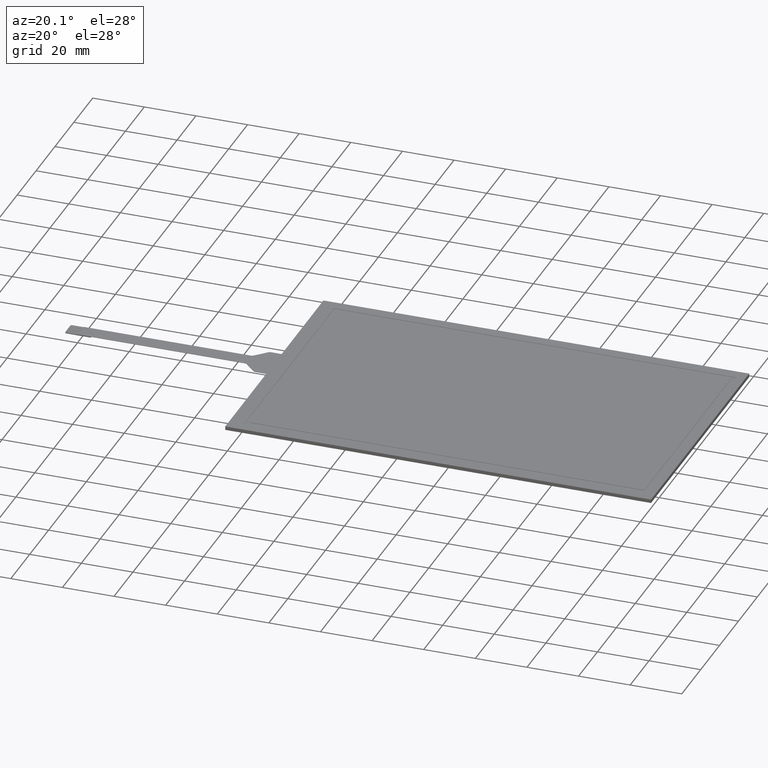
[diagram: clean part render]
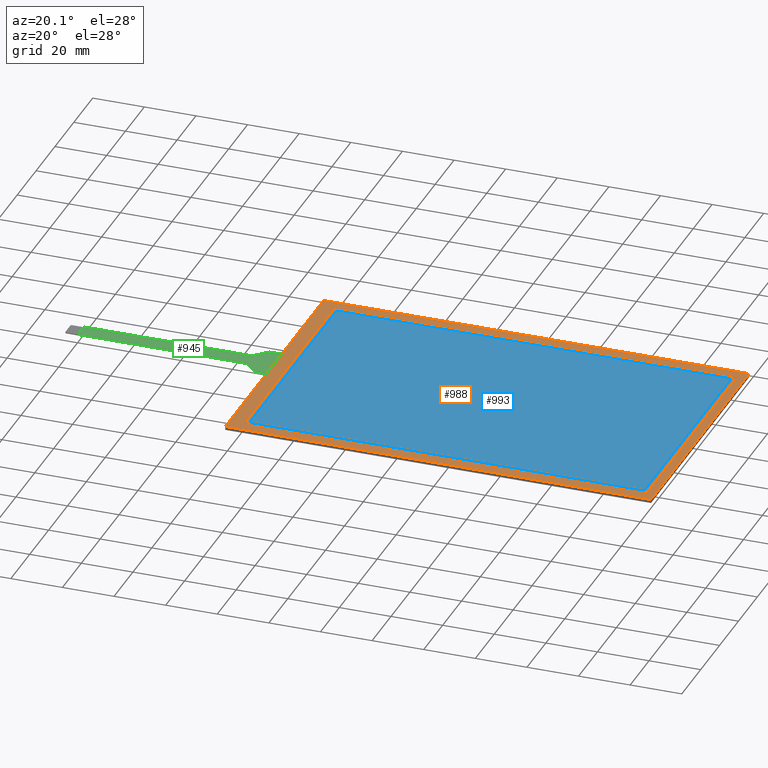
[diagram: same view with three faces highlighted in distinct colors, each labeled with its STEP entity id]
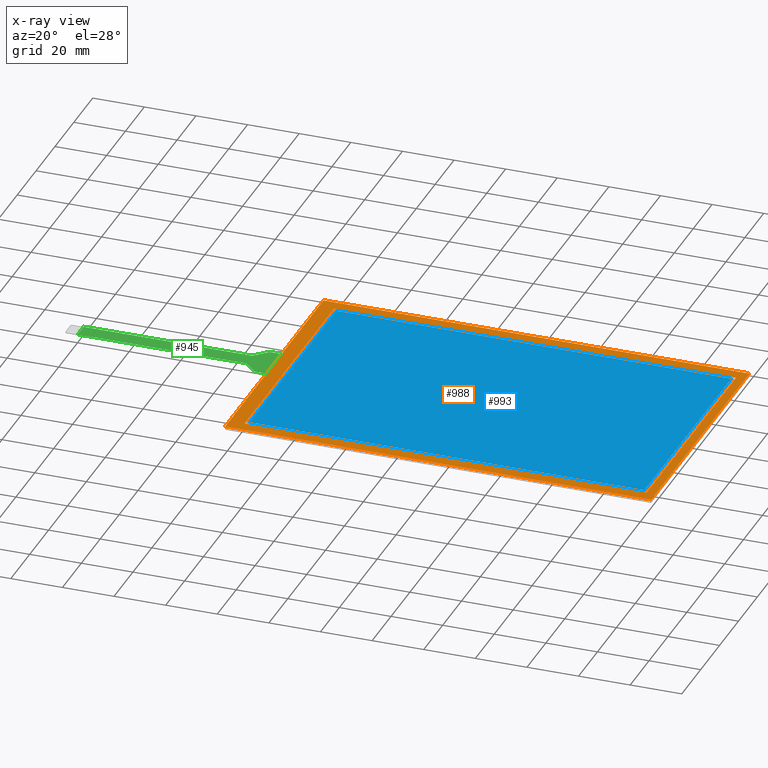
[diagram: x-ray of the same camera — body ghosted, the three highlighted faces saturated]
A machine part, auxiliary view with three faces highlighted in distinct colors.
The next image is the same camera in x-ray (body ghosted, the three faces saturated) — at least one of them is partly hidden behind the body in this view.
Their STEP definitions:

[orange] entity #988 — the highlighted planar face has unit normal (0, 0, 1).
#16=FACE_BOUND('',#160,.T.);
#56=PLANE('',#1071);
#107=FACE_OUTER_BOUND('',#159,.T.);
#159=EDGE_LOOP('',(#902,#903,#904,#905));
#160=EDGE_LOOP('',(#906,#907,#908,#909));
#270=LINE('',#1565,#396);
#274=LINE('',#1573,#400);
#277=LINE('',#1579,#403);
#280=LINE('',#1584,#406);
#282=LINE('',#1590,#408);
#283=LINE('',#1592,#409);
#284=LINE('',#1594,#410);
#285=LINE('',#1595,#411);
#396=VECTOR('',#1286,10.);
#400=VECTOR('',#1292,10.);
#403=VECTOR('',#1297,10.);
#406=VECTOR('',#1302,10.);
#408=VECTOR('',#1308,10.);
#409=VECTOR('',#1309,10.);
#410=VECTOR('',#1310,10.);
#411=VECTOR('',#1311,10.);
#508=VERTEX_POINT('',#1563);
#509=VERTEX_POINT('',#1564);
#512=VERTEX_POINT('',#1572);
#514=VERTEX_POINT('',#1578);
#516=VERTEX_POINT('',#1588);
#517=VERTEX_POINT('',#1589);
#518=VERTEX_POINT('',#1591);
#519=VERTEX_POINT('',#1593);
#638=EDGE_CURVE('',#508,#509,#270,.T.);
#642=EDGE_CURVE('',#512,#508,#274,.T.);
#645=EDGE_CURVE('',#514,#512,#277,.T.);
#648=EDGE_CURVE('',#509,#514,#280,.T.);
#650=EDGE_CURVE('',#516,#517,#282,.T.);
#651=EDGE_CURVE('',#517,#518,#283,.T.);
#652=EDGE_CURVE('',#518,#519,#284,.T.);
#653=EDGE_CURVE('',#519,#516,#285,.T.);
#902=ORIENTED_EDGE('',*,*,#650,.T.);
#903=ORIENTED_EDGE('',*,*,#651,.T.);
#904=ORIENTED_EDGE('',*,*,#652,.T.);
#905=ORIENTED_EDGE('',*,*,#653,.T.);
#906=ORIENTED_EDGE('',*,*,#638,.T.);
#907=ORIENTED_EDGE('',*,*,#648,.T.);
#908=ORIENTED_EDGE('',*,*,#645,.T.);
#909=ORIENTED_EDGE('',*,*,#642,.T.);
#988=ADVANCED_FACE('',(#107,#16),#56,.T.);
#1071=AXIS2_PLACEMENT_3D('',#1587,#1306,#1307);
#1286=DIRECTION('',(-1.87103100842664E-16,1.,0.));
#1292=DIRECTION('',(-1.,-1.13942067953833E-16,0.));
#1297=DIRECTION('',(9.35515504213319E-17,-1.,0.));
#1302=DIRECTION('',(1.,0.,0.));
#1306=DIRECTION('center_axis',(0.,0.,1.));
#1307=DIRECTION('ref_axis',(1.,0.,0.));
#1308=DIRECTION('',(-1.,0.,0.));
#1309=DIRECTION('',(3.41607084500048E-16,-1.,0.));
#1310=DIRECTION('',(1.,5.38289951333409E-17,0.));
#1311=DIRECTION('',(0.,1.,0.));
#1563=CARTESIAN_POINT('',(-77.95,-47.47,0.));
#1564=CARTESIAN_POINT('',(-77.95,47.47,0.));
#1565=CARTESIAN_POINT('',(-77.95,-23.735,0.));
#1572=CARTESIAN_POINT('',(77.95,-47.47,0.));
#1573=CARTESIAN_POINT('',(38.35,-47.47,0.));
#1578=CARTESIAN_POINT('',(77.95,47.47,0.));
#1579=CARTESIAN_POINT('',(77.95,23.735,0.));
#1584=CARTESIAN_POINT('',(-39.6,47.47,0.));
#1587=CARTESIAN_POINT('Origin',(-1.25000000000002,-1.33226762955019E-14,
0.));
#1588=CARTESIAN_POINT('',(81.25,52.,0.));
#1589=CARTESIAN_POINT('',(-83.75,52.,0.));
#1590=CARTESIAN_POINT('',(81.25,52.,0.));
#1591=CARTESIAN_POINT('',(-83.75,-52.,0.));
#1592=CARTESIAN_POINT('',(-83.75,52.,0.));
#1593=CARTESIAN_POINT('',(81.25,-52.,0.));
#1594=CARTESIAN_POINT('',(-83.75,-52.,0.));
#1595=CARTESIAN_POINT('',(81.25,-52.,0.));

[blue] entity #993 — the highlighted planar face has unit normal (0, 0, 1).
#61=PLANE('',#1076);
#112=FACE_OUTER_BOUND('',#166,.T.);
#166=EDGE_LOOP('',(#930,#931,#932,#933));
#258=LINE('',#1541,#384);
#262=LINE('',#1549,#388);
#265=LINE('',#1555,#391);
#268=LINE('',#1560,#394);
#384=VECTOR('',#1266,10.);
#388=VECTOR('',#1272,10.);
#391=VECTOR('',#1277,10.);
#394=VECTOR('',#1282,10.);
#500=VERTEX_POINT('',#1539);
#501=VERTEX_POINT('',#1540);
#504=VERTEX_POINT('',#1548);
#506=VERTEX_POINT('',#1554);
#626=EDGE_CURVE('',#500,#501,#258,.T.);
#630=EDGE_CURVE('',#504,#500,#262,.T.);
#633=EDGE_CURVE('',#506,#504,#265,.T.);
#636=EDGE_CURVE('',#501,#506,#268,.T.);
#930=ORIENTED_EDGE('',*,*,#626,.T.);
#931=ORIENTED_EDGE('',*,*,#636,.T.);
#932=ORIENTED_EDGE('',*,*,#633,.T.);
#933=ORIENTED_EDGE('',*,*,#630,.T.);
#993=ADVANCED_FACE('',(#112),#61,.T.);
#1076=AXIS2_PLACEMENT_3D('',#1612,#1328,#1329);
#1266=DIRECTION('',(1.,1.16177687338146E-16,0.));
#1272=DIRECTION('',(0.,-1.,0.));
#1277=DIRECTION('',(-1.,1.16177687338146E-16,0.));
#1282=DIRECTION('',(0.,1.,0.));
#1328=DIRECTION('center_axis',(0.,0.,1.));
#1329=DIRECTION('ref_axis',(1.,0.,0.));
#1539=CARTESIAN_POINT('',(-76.45,-45.97,0.));
#1540=CARTESIAN_POINT('',(76.45,-45.97,0.));
#1541=CARTESIAN_POINT('',(-38.85,-45.97,0.));
#1548=CARTESIAN_POINT('',(-76.45,45.97,0.));
#1549=CARTESIAN_POINT('',(-76.45,22.985,0.));
#1554=CARTESIAN_POINT('',(76.45,45.97,0.));
#1555=CARTESIAN_POINT('',(37.6,45.97,0.));
#1560=CARTESIAN_POINT('',(76.45,-22.985,0.));
#1612=CARTESIAN_POINT('Origin',(-1.25000000000002,-1.33226762955019E-14,
0.));

[green] entity #945 — the highlighted planar face has unit normal (0, 0, 1).
#18=PLANE('',#1018);
#64=FACE_OUTER_BOUND('',#115,.T.);
#115=EDGE_LOOP('',(#666,#667,#668,#669,#670,#671,#672,#673,#674,#675,#676,
#677));
#170=LINE('',#1344,#296);
#171=LINE('',#1348,#297);
#172=LINE('',#1350,#298);
#173=LINE('',#1352,#299);
#174=LINE('',#1356,#300);
#175=LINE('',#1360,#301);
#176=LINE('',#1362,#302);
#177=LINE('',#1363,#303);
#296=VECTOR('',#1090,10.);
#297=VECTOR('',#1093,10.);
#298=VECTOR('',#1094,10.);
#299=VECTOR('',#1095,10.);
#300=VECTOR('',#1098,10.);
#301=VECTOR('',#1101,10.);
#302=VECTOR('',#1102,10.);
#303=VECTOR('',#1103,10.);
#421=CIRCLE('',#1017,1.);
#422=CIRCLE('',#1019,1.);
#423=CIRCLE('',#1020,1.);
#424=CIRCLE('',#1021,1.);
#434=VERTEX_POINT('',#1337);
#435=VERTEX_POINT('',#1339);
#436=VERTEX_POINT('',#1343);
#437=VERTEX_POINT('',#1345);
#438=VERTEX_POINT('',#1347);
#439=VERTEX_POINT('',#1349);
#440=VERTEX_POINT('',#1351);
#441=VERTEX_POINT('',#1353);
#442=VERTEX_POINT('',#1355);
#443=VERTEX_POINT('',#1357);
#444=VERTEX_POINT('',#1359);
#445=VERTEX_POINT('',#1361);
#526=EDGE_CURVE('',#434,#435,#421,.T.);
#528=EDGE_CURVE('',#434,#436,#170,.T.);
#529=EDGE_CURVE('',#437,#436,#422,.T.);
#530=EDGE_CURVE('',#437,#438,#171,.T.);
#531=EDGE_CURVE('',#438,#439,#172,.T.);
#532=EDGE_CURVE('',#439,#440,#173,.T.);
#533=EDGE_CURVE('',#441,#440,#423,.T.);
#534=EDGE_CURVE('',#441,#442,#174,.T.);
#535=EDGE_CURVE('',#443,#442,#424,.T.);
#536=EDGE_CURVE('',#443,#444,#175,.T.);
#537=EDGE_CURVE('',#445,#444,#176,.T.);
#538=EDGE_CURVE('',#445,#435,#177,.T.);
#666=ORIENTED_EDGE('',*,*,#526,.F.);
#667=ORIENTED_EDGE('',*,*,#528,.T.);
#668=ORIENTED_EDGE('',*,*,#529,.F.);
#669=ORIENTED_EDGE('',*,*,#530,.T.);
#670=ORIENTED_EDGE('',*,*,#531,.T.);
#671=ORIENTED_EDGE('',*,*,#532,.T.);
#672=ORIENTED_EDGE('',*,*,#533,.F.);
#673=ORIENTED_EDGE('',*,*,#534,.T.);
#674=ORIENTED_EDGE('',*,*,#535,.F.);
#675=ORIENTED_EDGE('',*,*,#536,.T.);
#676=ORIENTED_EDGE('',*,*,#537,.F.);
#677=ORIENTED_EDGE('',*,*,#538,.T.);
#945=ADVANCED_FACE('',(#64),#18,.T.);
#1017=AXIS2_PLACEMENT_3D('',#1340,#1085,#1086);
#1018=AXIS2_PLACEMENT_3D('',#1342,#1088,#1089);
#1019=AXIS2_PLACEMENT_3D('',#1346,#1091,#1092);
#1020=AXIS2_PLACEMENT_3D('',#1354,#1096,#1097);
#1021=AXIS2_PLACEMENT_3D('',#1358,#1099,#1100);
#1085=DIRECTION('center_axis',(0.,0.,-1.));
#1086=DIRECTION('ref_axis',(-0.382683432365091,0.923879532511286,0.));
#1088=DIRECTION('center_axis',(0.,0.,1.));
#1089=DIRECTION('ref_axis',(1.,0.,0.));
#1090=DIRECTION('',(-0.707106781186547,-0.707106781186548,0.));
#1091=DIRECTION('center_axis',(0.,0.,1.));
#1092=DIRECTION('ref_axis',(0.382683432365089,-0.923879532511287,0.));
#1093=DIRECTION('',(-1.,-1.18495413187543E-16,0.));
#1094=DIRECTION('',(0.,-1.,0.));
#1095=DIRECTION('',(1.,4.8978104117518E-16,0.));
#1096=DIRECTION('center_axis',(0.,0.,1.));
#1097=DIRECTION('ref_axis',(0.382683432365089,0.923879532511287,0.));
#1098=DIRECTION('',(0.707106781186546,-0.707106781186549,0.));
#1099=DIRECTION('center_axis',(0.,0.,-1.));
#1100=DIRECTION('ref_axis',(-0.382683432365089,-0.923879532511287,0.));
#1101=DIRECTION('',(1.,4.65502316404678E-16,0.));
#1102=DIRECTION('',(3.41607084500048E-16,-1.,0.));
#1103=DIRECTION('',(-1.,-2.32751158202339E-16,0.));
#1337=CARTESIAN_POINT('',(-88.8128932188135,7.79710678118652,-0.188));
#1339=CARTESIAN_POINT('',(-88.1057864376269,8.08999999999999,-0.188));
#1340=CARTESIAN_POINT('Origin',(-88.1057864376269,7.08999999999999,-0.188));
#1342=CARTESIAN_POINT('Origin',(-123.75,0.00499999999998668,-0.188));
#1343=CARTESIAN_POINT('',(-93.1871067811866,3.42289321881343,-0.188));
#1344=CARTESIAN_POINT('',(-88.52,8.08999999999999,-0.188));
#1345=CARTESIAN_POINT('',(-93.8942135623731,3.12999999999998,-0.188));
#1346=CARTESIAN_POINT('Origin',(-93.8942135623731,4.12999999999998,-0.188));
#1347=CARTESIAN_POINT('',(-158.75,3.12999999999997,-0.188));
#1348=CARTESIAN_POINT('',(-93.48,3.12999999999998,-0.188));
#1349=CARTESIAN_POINT('',(-158.75,-3.12000000000003,-0.188));
#1350=CARTESIAN_POINT('',(-158.75,1.56749999999998,-0.188));
#1351=CARTESIAN_POINT('',(-93.8942135623731,-3.11999999999999,-0.188));
#1352=CARTESIAN_POINT('',(-163.75,-3.12000000000003,-0.188));
#1353=CARTESIAN_POINT('',(-93.1871067811866,-3.41289321881345,-0.188));
#1354=CARTESIAN_POINT('Origin',(-93.8942135623731,-4.11999999999999,-0.188));
#1355=CARTESIAN_POINT('',(-88.8128932188135,-7.78710678118656,-0.188));
#1356=CARTESIAN_POINT('',(-93.48,-3.11999999999999,-0.188));
#1357=CARTESIAN_POINT('',(-88.1057864376269,-8.08000000000002,-0.188));
#1358=CARTESIAN_POINT('Origin',(-88.1057864376269,-7.08000000000002,-0.188));
#1359=CARTESIAN_POINT('',(-83.75,-8.08000000000001,-0.188));
#1360=CARTESIAN_POINT('',(-88.52,-8.08000000000002,-0.188));
#1361=CARTESIAN_POINT('',(-83.75,8.08999999999999,-0.188));
#1362=CARTESIAN_POINT('',(-83.75,-25.9975,-0.188));
#1363=CARTESIAN_POINT('',(-83.75,8.08999999999999,-0.188));